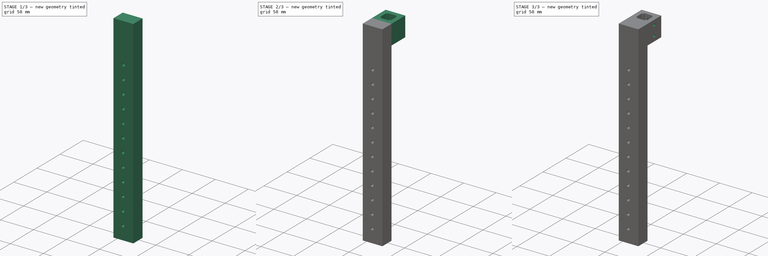
[diagram: build sequence overview — one tinted view per stage of 3, left to right]
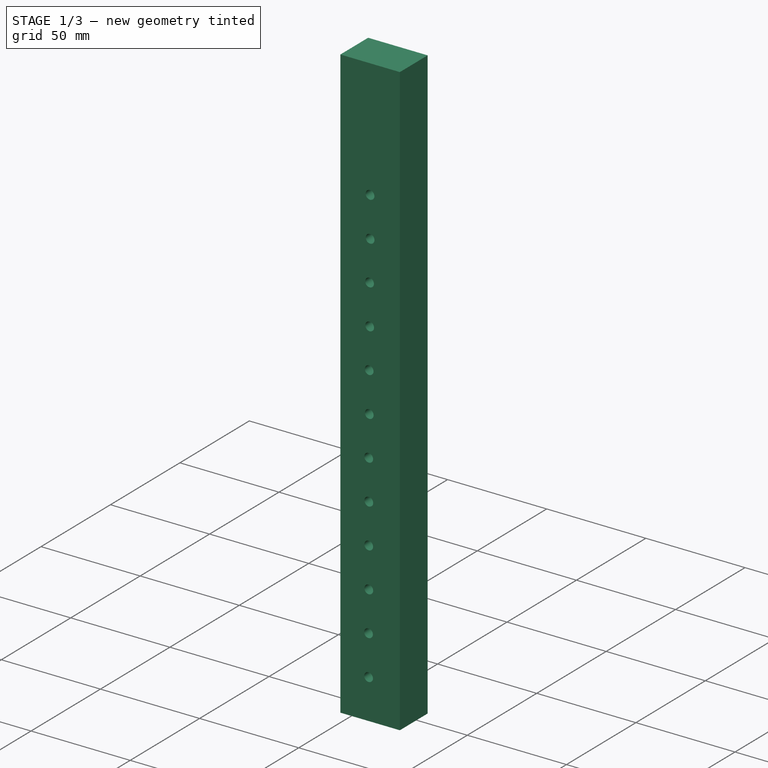
[diagram: stage 1 of 3 — iso view after this stage's code; geometry added in this stage tinted green]
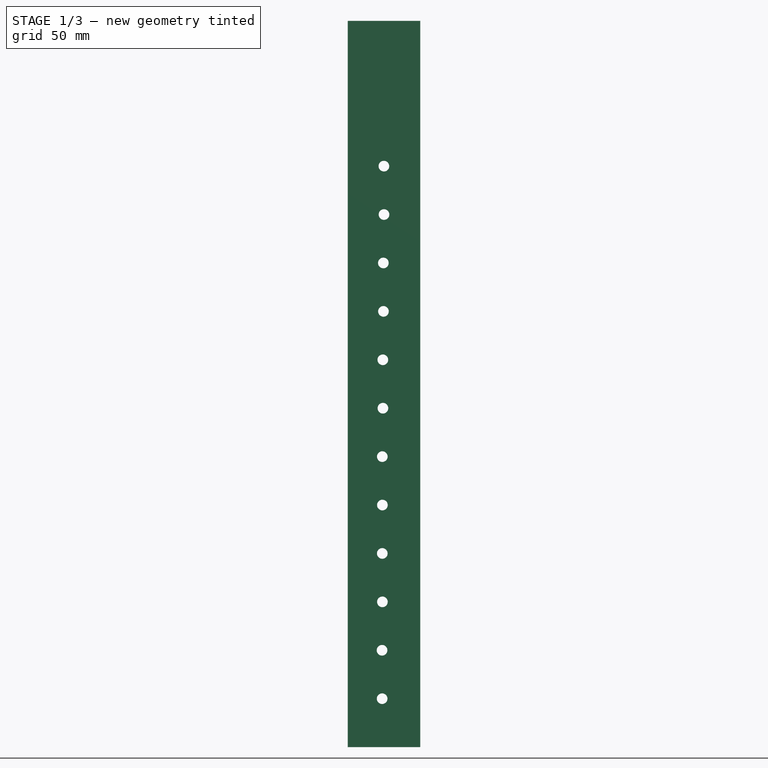
[diagram: stage 1 of 3 — front view after this stage's code; geometry added in this stage tinted green]
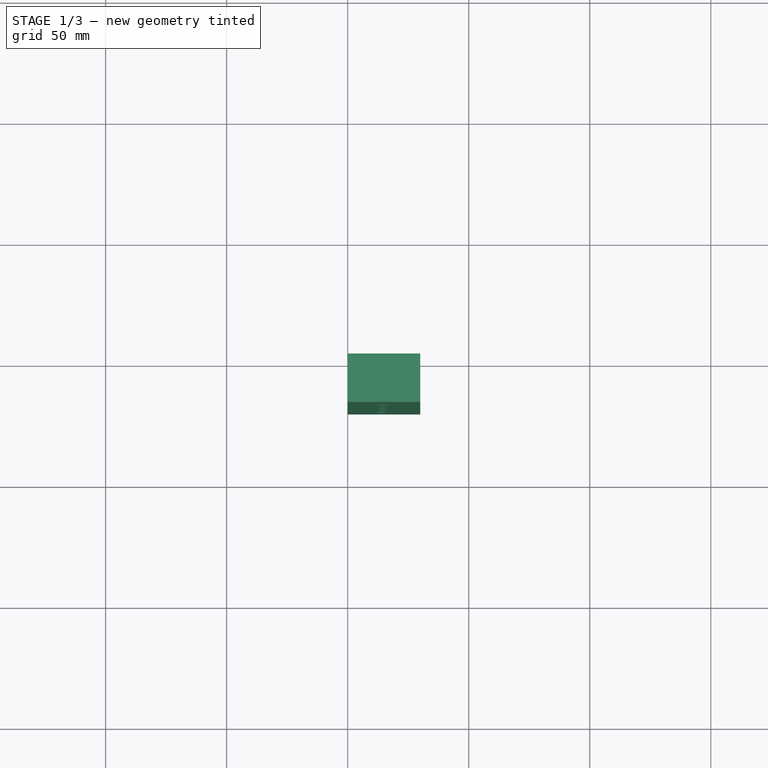
[diagram: stage 1 of 3 — top view after this stage's code; geometry added in this stage tinted green]
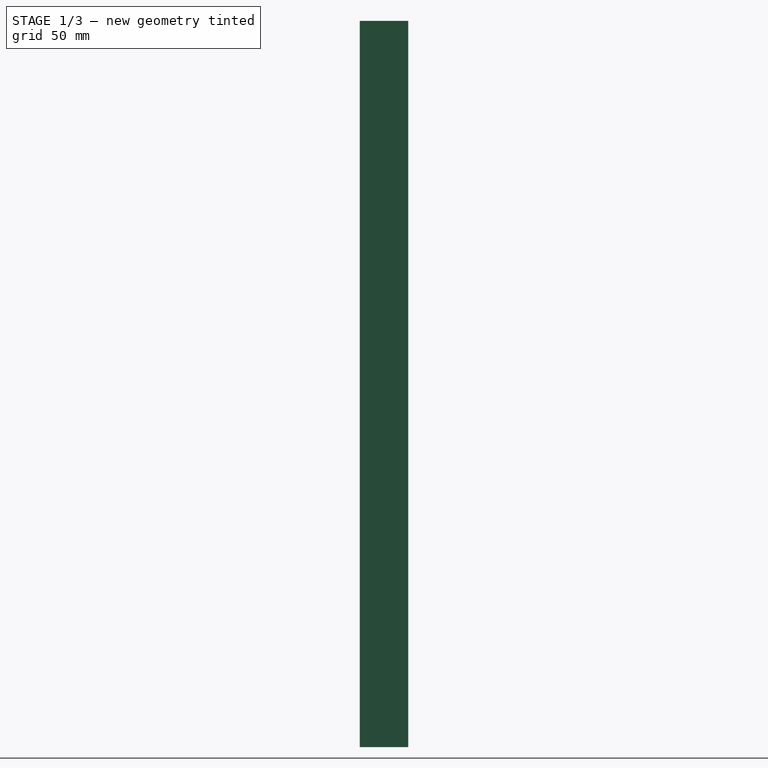
[diagram: stage 1 of 3 — right view after this stage's code; geometry added in this stage tinted green]
FCSTD DOCUMENT  (FreeCAD 0.18R4 (GitTag))
Label: Holder_NMR_Probe_withRod
License: All rights reserved
LicenseURL: http://en.wikipedia.org/wiki/All_rights_reserved
objects: Sketcher::SketchObject×6, PartDesign::Pocket×3, PartDesign::Pad×2, PartDesign::ShapeBinder×1, PartDesign::Hole×1, PartDesign::Body×1
note: 20 computed .brp shape members not serialized (recipe doc carries the construction recipe); baked Part::Feature solids carry a one-line shape summary decoded from their .brp

FEATURE [PartDesign::ShapeBinder] CopyBoolean001
  TraceSupport = false
FEATURE [Sketcher::SketchObject] Sketch003
  MapMode = 5
  Placement = pos=(0,0,0) rot=(1,0,0;1.5708rad)
  Support = -> [CopyBoolean001]
  sketch-geometry (4):
    g0: LineSegment StartX=0 StartY=30 StartZ=0 EndX=30 EndY=30 EndZ=0
    g1: LineSegment StartX=30 StartY=30 StartZ=0 EndX=30 EndY=-270 EndZ=0
    g2: LineSegment StartX=30 StartY=-270 StartZ=0 EndX=0 EndY=-270 EndZ=0
    g3: LineSegment StartX=0 StartY=-270 StartZ=0 EndX=0 EndY=30 EndZ=0
  constraints (12):
    c: Coincident(g0,g1)
    c: Coincident(g1,g2)
    c: Coincident(g2,g3)
    c: Coincident(g3,g0)
    c: Horizontal(g0)
    c: Horizontal(g2)
    c: Vertical(g1)
    c: Vertical(g3)
    c: PointOnObject(g0,g-2)
    c: DistanceY(g-1,g0) = 30
    c: DistanceX(g0,g0) = 30
    c: DistanceY(g1,g1) = 300
FEATURE [PartDesign::Pad] Pad003
  Length = 20
  Length2 = 100
  Profile = -> Sketch003
  Type = 0
FEATURE [Sketcher::SketchObject] Sketch004
  MapMode = 5
  Placement = pos=(0,-2e-16,0) rot=(0,0.707107,0.707107;3.14159rad)
  Support = -> [Pad003]
  sketch-geometry (12):
    g0: Circle CenterX=-15 CenterY=-50 CenterZ=0 NormalX=0 NormalY=0 NormalZ=1 AngleXU=0 Radius=5.16107
    g1: Circle CenterX=-14.9568 CenterY=-30 CenterZ=0 NormalX=0 NormalY=0 NormalZ=1 AngleXU=0 Radius=5.16107
    g2: Circle CenterX=-14.7782 CenterY=-90 CenterZ=0 NormalX=0 NormalY=0 NormalZ=1 AngleXU=0 Radius=5.16107
    g3: Circle CenterX=-14.735 CenterY=-70 CenterZ=0 NormalX=0 NormalY=0 NormalZ=1 AngleXU=0 Radius=5.16107
    g4: Circle CenterX=-14.5591 CenterY=-130 CenterZ=0 NormalX=0 NormalY=0 NormalZ=1 AngleXU=0 Radius=5.16107
    g5: Circle CenterX=-14.5159 CenterY=-110 CenterZ=0 NormalX=0 NormalY=0 NormalZ=1 AngleXU=0 Radius=5.16107
    g6: Circle CenterX=-14.3372 CenterY=-170 CenterZ=0 NormalX=0 NormalY=0 NormalZ=1 AngleXU=0 Radius=5.16107
    g7: Circle CenterX=-14.294 CenterY=-150 CenterZ=0 NormalX=0 NormalY=0 NormalZ=1 AngleXU=0 Radius=5.16107
    g8: Circle CenterX=-14.3359 CenterY=-210 CenterZ=0 NormalX=0 NormalY=0 NormalZ=1 AngleXU=0 Radius=5.16107
    g9: Circle CenterX=-14.2926 CenterY=-190 CenterZ=0 NormalX=0 NormalY=0 NormalZ=1 AngleXU=0 Radius=5.16107
    g10: Circle CenterX=-14.2311 CenterY=-250 CenterZ=0 NormalX=0 NormalY=0 NormalZ=1 AngleXU=0 Radius=5.16107
    g11: Circle CenterX=-14.1879 CenterY=-230 CenterZ=0 NormalX=0 NormalY=0 NormalZ=1 AngleXU=0 Radius=5.16107
  constraints (13):
    c: DistanceX(g0,g-1) = 15
    c: DistanceY(g0,g1) = 20
    c: DistanceY(g1,g-1) = 30
    c: DistanceY(g2,g3) = 20
    c: DistanceY(g3,g0) = 20
    c: DistanceY(g4,g5) = 20
    c: DistanceY(g6,g7) = 20
    c: DistanceY(g7,g4) = 20
    c: DistanceY(g5,g2) = 20
    c: DistanceY(g8,g9) = 20
    c: DistanceY(g9,g6) = 20
    c: DistanceY(g10,g11) = 20
    c: DistanceY(g11,g8) = 20
FEATURE [PartDesign::Hole] Hole
  BaseFeature = -> Pad003
  Depth = 25
  DepthType = 0
  Diameter = 4.4
  DrillPoint = 0
  DrillPointAngle = 118
  HoleCutCountersinkAngle = 90
  HoleCutDepth = 5
  HoleCutDiameter = 6
  HoleCutType = -1
  ModelActualThread = false
  Profile = -> Sketch004
  Tapered = false
  TaperedAngle = 90
  ThreadAngle = 0
  ThreadClass = 0
  ThreadCutOffInner = 0
  ThreadCutOffOuter = 0
  ThreadDirection = 0
  ThreadFit = 0
  ThreadPitch = 0
  ThreadSize = -1
  ThreadType = 1
  Threaded = false
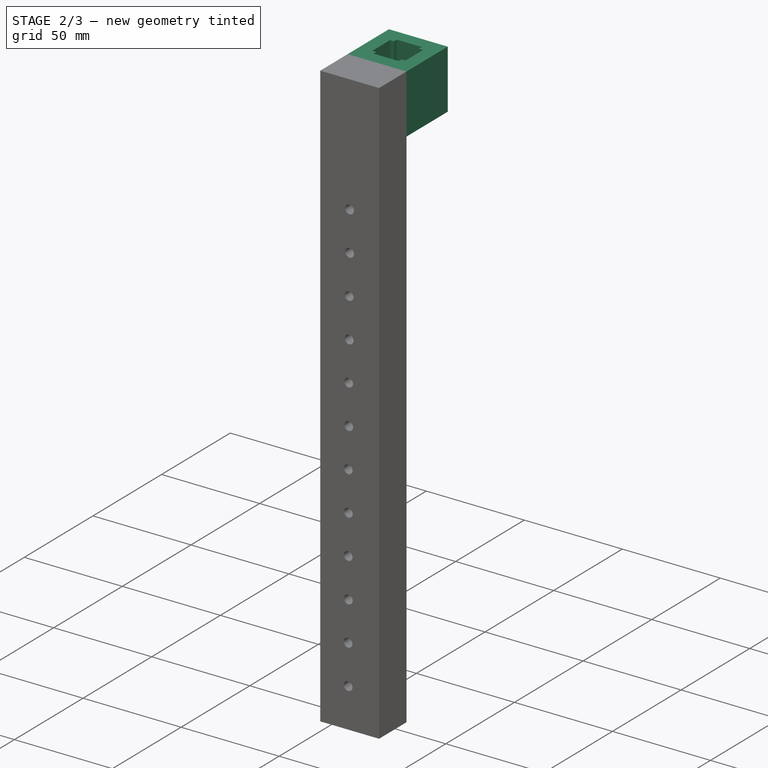
[diagram: stage 2 of 3 — iso view after this stage's code; geometry added in this stage tinted green]
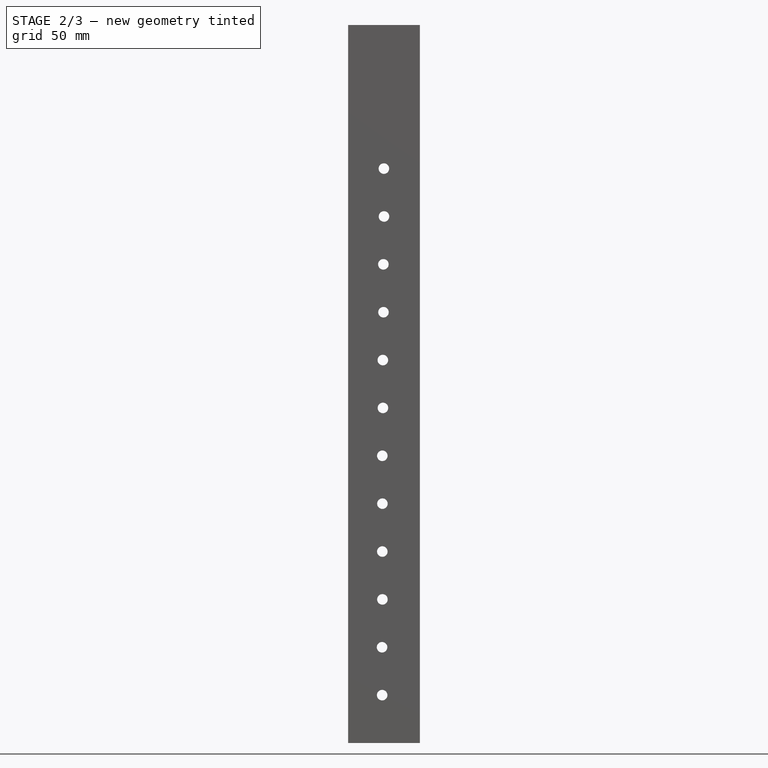
[diagram: stage 2 of 3 — front view after this stage's code; geometry added in this stage tinted green]
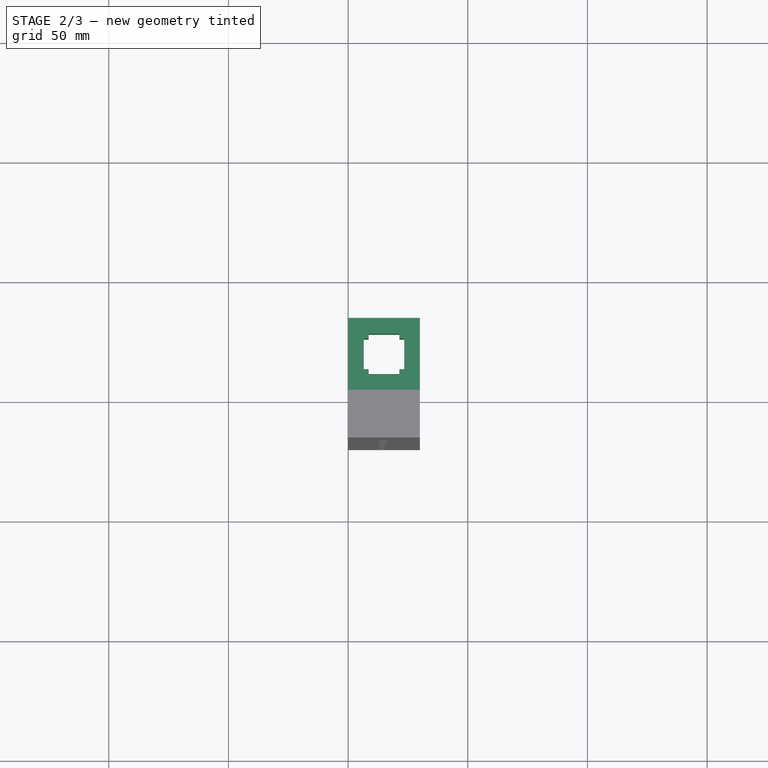
[diagram: stage 2 of 3 — top view after this stage's code; geometry added in this stage tinted green]
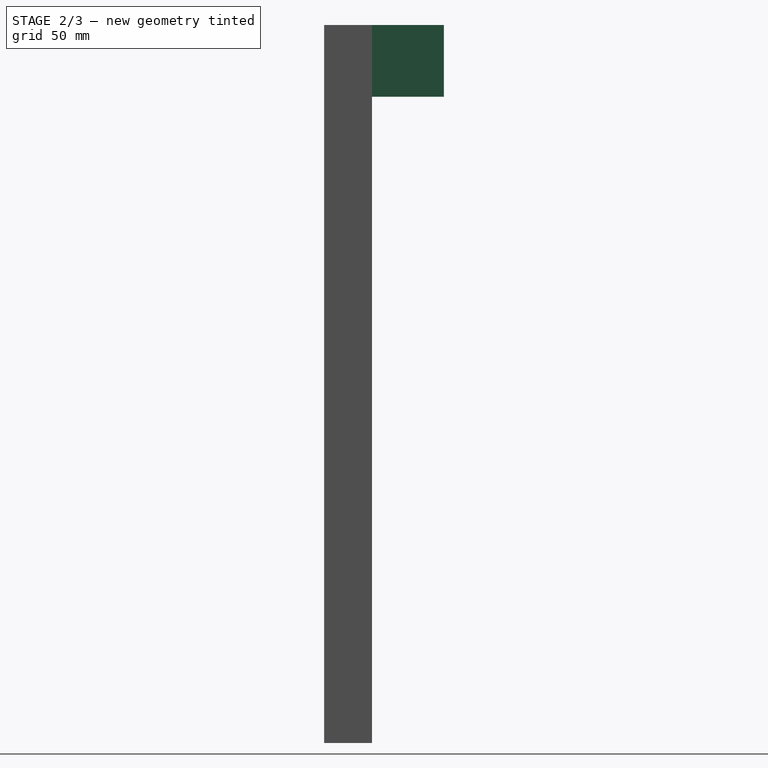
[diagram: stage 2 of 3 — right view after this stage's code; geometry added in this stage tinted green]
FEATURE [Sketcher::SketchObject] Sketch
  MapMode = 5
  Placement = pos=(0,-2e-16,0) rot=(0,0.707107,0.707107;3.14159rad)
  Support = -> [Hole]
  sketch-geometry (4):
    g0: LineSegment StartX=0 StartY=0 StartZ=0 EndX=-30 EndY=0 EndZ=0
    g1: LineSegment StartX=-30 StartY=0 StartZ=0 EndX=-30 EndY=30 EndZ=0
    g2: LineSegment StartX=-30 StartY=30 StartZ=0 EndX=0 EndY=30 EndZ=0
    g3: LineSegment StartX=0 StartY=30 StartZ=0 EndX=0 EndY=0 EndZ=0
  constraints (11):
    c: Coincident(g0,g1)
    c: Coincident(g1,g2)
    c: Coincident(g2,g3)
    c: Coincident(g3,g0)
    c: Horizontal(g0)
    c: Horizontal(g2)
    c: Vertical(g1)
    c: Vertical(g3)
    c: Coincident(g0,g-1)
    c: DistanceX(g2,g2) = 30
    c: DistanceY(g0,g1) = 30
FEATURE [PartDesign::Pad] Pad
  BaseFeature = -> Hole
  Length = 30
  Length2 = 100
  Profile = -> Sketch
  Type = 0
FEATURE [Sketcher::SketchObject] Sketch005
  MapMode = 5
  Placement = pos=(0,0,0) rot=(1,0,0;3.14159rad)
  Support = -> [Pad]
  sketch-geometry (13):
    g0: LineSegment StartX=6.55 StartY=-8.6 StartZ=0 EndX=6.55 EndY=-21.4 EndZ=0
    g1: LineSegment StartX=6.55 StartY=-21.4 StartZ=0 EndX=8.6 EndY=-21.4 EndZ=0
    g2: LineSegment StartX=8.6 StartY=-21.4 StartZ=0 EndX=8.6 EndY=-23.45 EndZ=0
    g3: LineSegment StartX=8.6 StartY=-23.45 StartZ=0 EndX=21.4 EndY=-23.45 EndZ=0
    g4: LineSegment StartX=21.4 StartY=-23.45 StartZ=0 EndX=21.4 EndY=-21.4 EndZ=0
    g5: LineSegment StartX=21.4 StartY=-21.4 StartZ=0 EndX=23.45 EndY=-21.4 EndZ=0
    g6: LineSegment StartX=23.45 StartY=-8.6 StartZ=0 EndX=21.4 EndY=-8.6 EndZ=0
    g7: LineSegment StartX=21.4 StartY=-8.6 StartZ=0 EndX=21.4 EndY=-6.55 EndZ=0
    g8: LineSegment StartX=21.4 StartY=-6.55 StartZ=0 EndX=8.6 EndY=-6.55 EndZ=0
    g9: LineSegment StartX=8.6 StartY=-6.55 StartZ=0 EndX=8.6 EndY=-8.6 EndZ=0
    g10: LineSegment StartX=8.6 StartY=-8.6 StartZ=0 EndX=6.55 EndY=-8.6 EndZ=0
    g11: LineSegment StartX=23.45 StartY=-8.6 StartZ=0 EndX=23.45 EndY=-21.4 EndZ=0
    g12: GeomPoint X=15 Y=-15 Z=0
  constraints (35):
    c: Coincident(g1,g0)
    c: Coincident(g2,g1)
    c: Coincident(g3,g2)
    c: Coincident(g4,g3)
    c: Coincident(g7,g6)
    c: Coincident(g8,g7)
    c: Coincident(g4,g5)
    c: Perpendicular(g1,g0)
    c: Perpendicular(g2,g1)
    c: Perpendicular(g5,g4)
    c: Perpendicular(g8,g7)
    c: Perpendicular(g9,g8)
    c: Coincident(g9,g10)
    c: Coincident(g8,g9)
    c: Coincident(g10,g0)
    c: Perpendicular(g0,g10)
    c: Perpendicular(g6,g7)
    c: DistanceY(g0,g0) = 12.8
    c: Coincident(g11,g6)
    c: Coincident(g11,g5)
    c: Symmetric(g6,g1,g12)
    c: Symmetric(g9,g4,g12)
    c: Symmetric(g8,g3,g12)
    c: DistanceY(g2,g8) = 16.9
    c: Symmetric(g5,g0,g12)
    c: Equal(g1,g2)
    c: Equal(g2,g4)
    c: Equal(g4,g5)
    c: Equal(g6,g5)
    c: Equal(g6,g7)
    c: Equal(g9,g7)
    c: Equal(g0,g8)
    c: DistanceX(g-1,g12) = 15
    c: DistanceY(g12,g-1) = 15
    c: Parallel(g8,g-1)
FEATURE [PartDesign::Pocket] Pocket
  BaseFeature = -> Pad
  Length = 30
  Length2 = 100
  Profile = -> Sketch005
  Type = 0
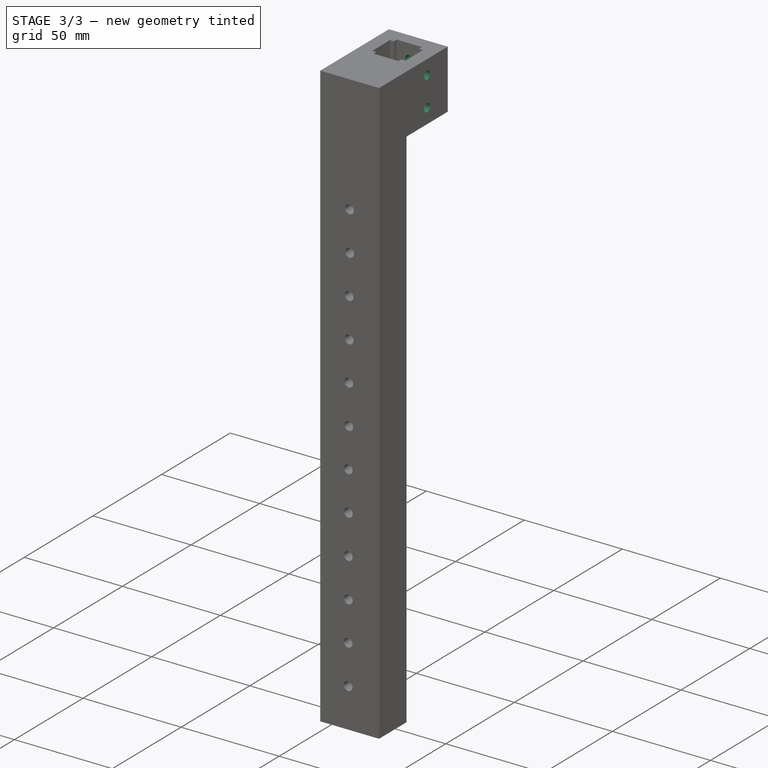
[diagram: stage 3 of 3 — iso view after this stage's code; geometry added in this stage tinted green]
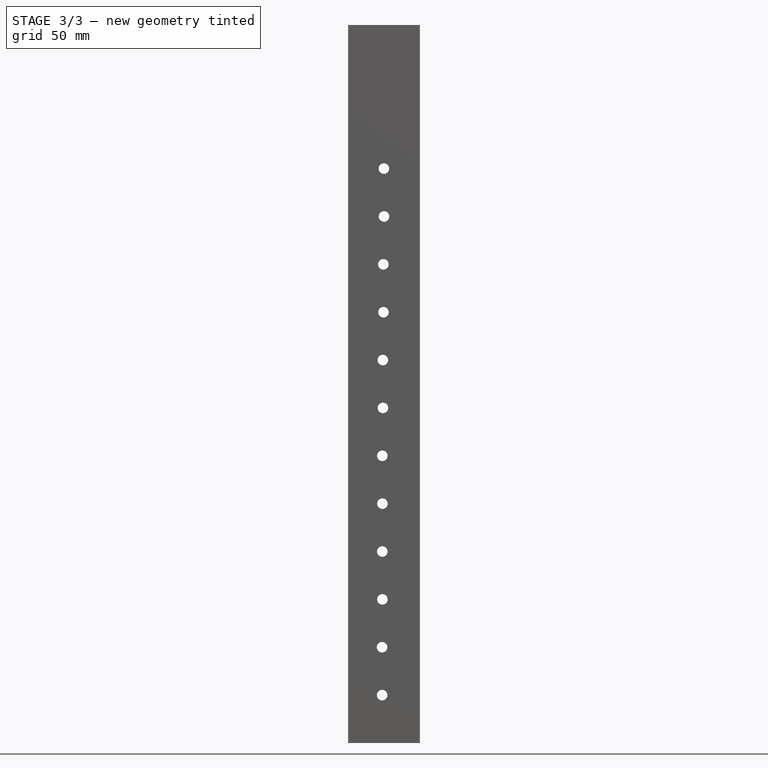
[diagram: stage 3 of 3 — front view after this stage's code; geometry added in this stage tinted green]
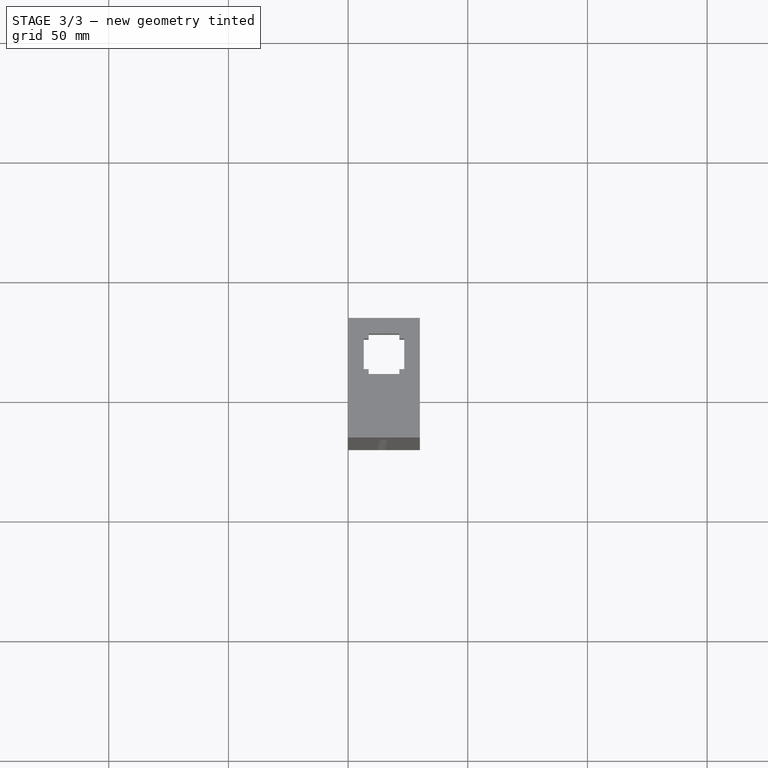
[diagram: stage 3 of 3 — top view after this stage's code; geometry added in this stage tinted green]
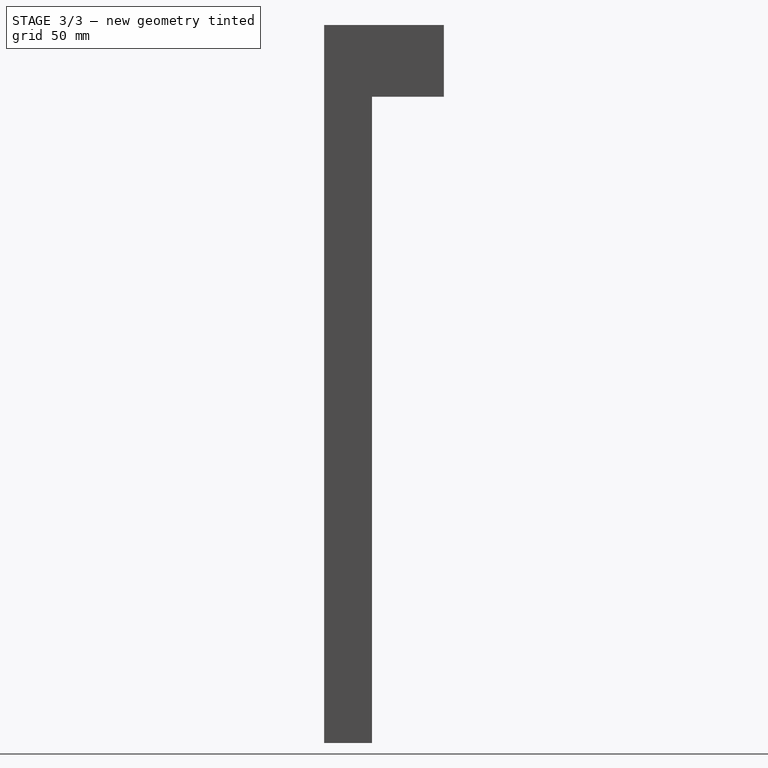
[diagram: stage 3 of 3 — right view after this stage's code; geometry added in this stage tinted green]
FEATURE [Sketcher::SketchObject] Sketch006
  MapMode = 5
  Placement = pos=(0,30,-6.7e-15) rot=(0,0.707107,0.707107;3.14159rad)
  Support = -> [Pocket]
  sketch-geometry (4):
    g0: Circle CenterX=-15 CenterY=7.5 CenterZ=0 NormalX=0 NormalY=0 NormalZ=1 AngleXU=0 Radius=2.1
    g1: Circle CenterX=-15 CenterY=22.5 CenterZ=0 NormalX=0 NormalY=0 NormalZ=1 AngleXU=0 Radius=2.1
    g2: LineSegment [constr] StartX=-15 StartY=7.5 StartZ=0 EndX=-15 EndY=22.5 EndZ=0
    g3: GeomPoint X=-15 Y=15 Z=0
  constraints (9):
    c: Equal(g0,g1)
    c: Coincident(g2,g0)
    c: Coincident(g2,g1)
    c: Parallel(g2,g-2)
    c: Symmetric(g1,g0,g3)
    c: DistanceX(g3,g-1) = 15
    c: DistanceY(g-1,g3) = 15
    c: DistanceY(g2,g2) = 15
    c: Radius(g1) = 2.1
FEATURE [PartDesign::Pocket] Pocket001
  BaseFeature = -> Pocket
  Length = 7
  Length2 = 100
  Profile = -> Sketch006
  Type = 0
FEATURE [Sketcher::SketchObject] Sketch007
  MapMode = 5
  Placement = pos=(30,0,0) rot=(0.57735,0.57735,0.57735;2.0944rad)
  Support = -> [Pocket001]
  sketch-geometry (4):
    g0: LineSegment [constr] StartX=15 StartY=7.5 StartZ=0 EndX=15 EndY=22.5 EndZ=0
    g1: GeomPoint X=15 Y=15 Z=0
    g2: Circle CenterX=15 CenterY=22.5 CenterZ=0 NormalX=0 NormalY=0 NormalZ=1 AngleXU=0 Radius=2.1
    g3: Circle CenterX=15 CenterY=7.5 CenterZ=0 NormalX=0 NormalY=0 NormalZ=1 AngleXU=0 Radius=2.1
  constraints (9):
    c: Symmetric(g0,g0,g1)
    c: DistanceY(g-1,g1) = 15
    c: DistanceX(g-1,g1) = 15
    c: Coincident(g3,g0)
    c: Coincident(g0,g2)
    c: Equal(g3,g2)
    c: Radius(g2) = 2.1
    c: DistanceY(g0,g0) = 15
    c: Parallel(g0,g-2)
FEATURE [PartDesign::Pocket] Pocket002
  BaseFeature = -> Pocket001
  Length = 7
  Length2 = 100
  Profile = -> Sketch007
  Type = 0
FEATURE [PartDesign::Body] Body003
  Group = -> [CopyBoolean001,Sketch003,Pad003,Sketch004,Hole,Sketch,Pad,Sketch005,Pocket,Sketch006,Pocket001,Sketch007,Pocket002]
  Origin = -> Origin003
  Tip = -> Pocket002
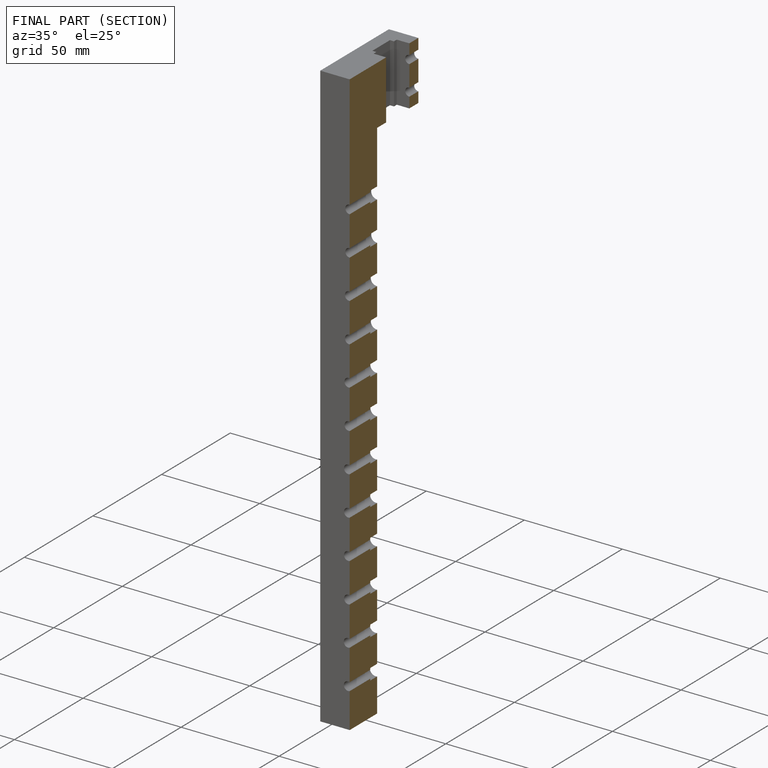
[diagram: finished part — half-section view (interior)]
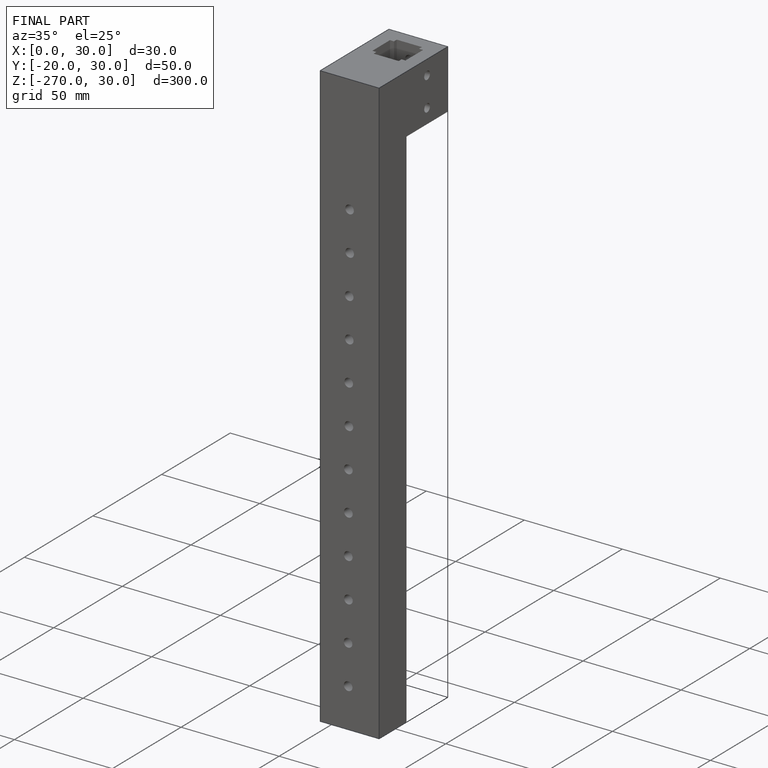
[diagram: finished part — iso view with bounding-box wireframe]
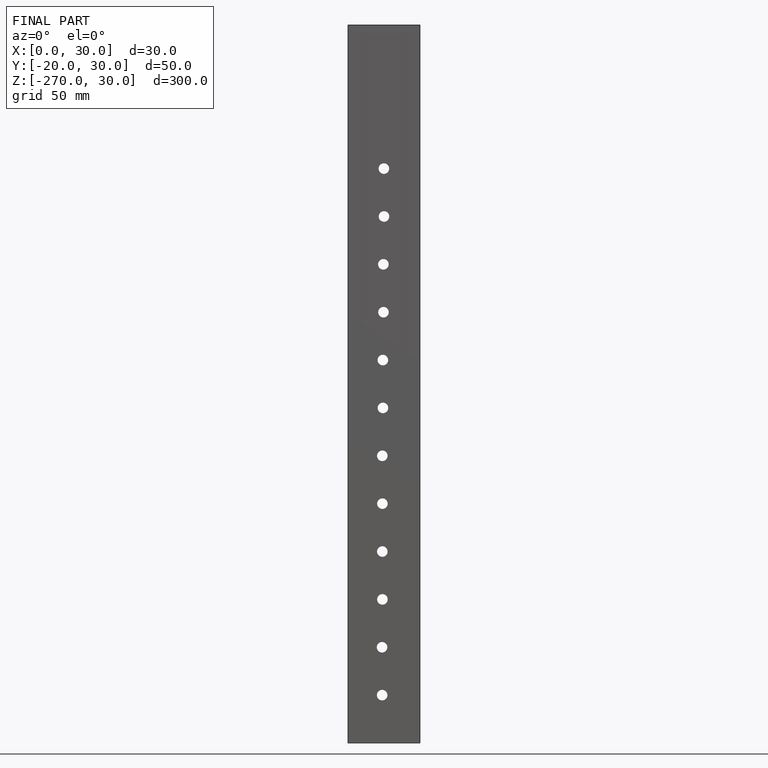
[diagram: finished part — front view with bounding-box wireframe]
